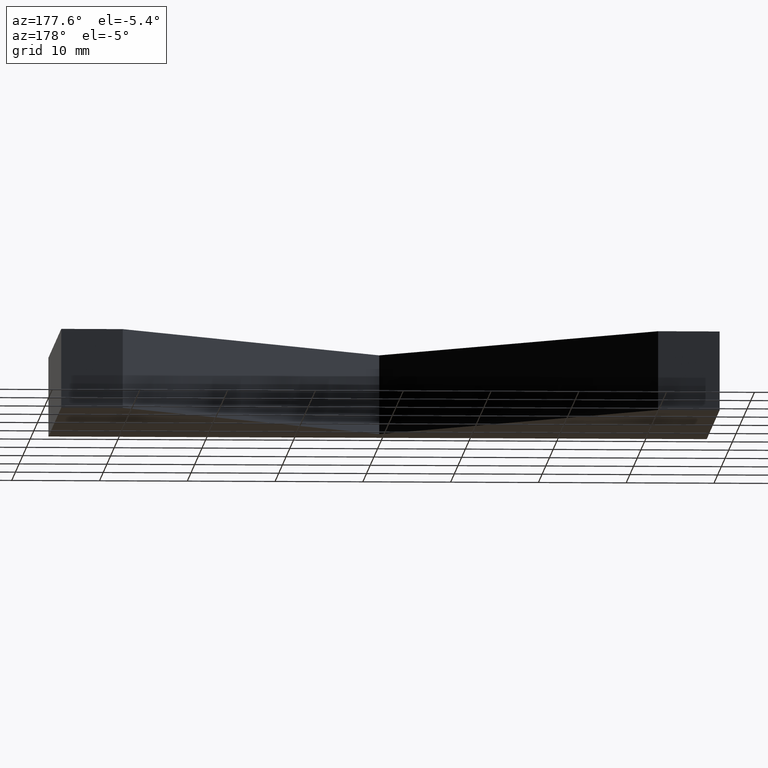
[diagram: clean part render]
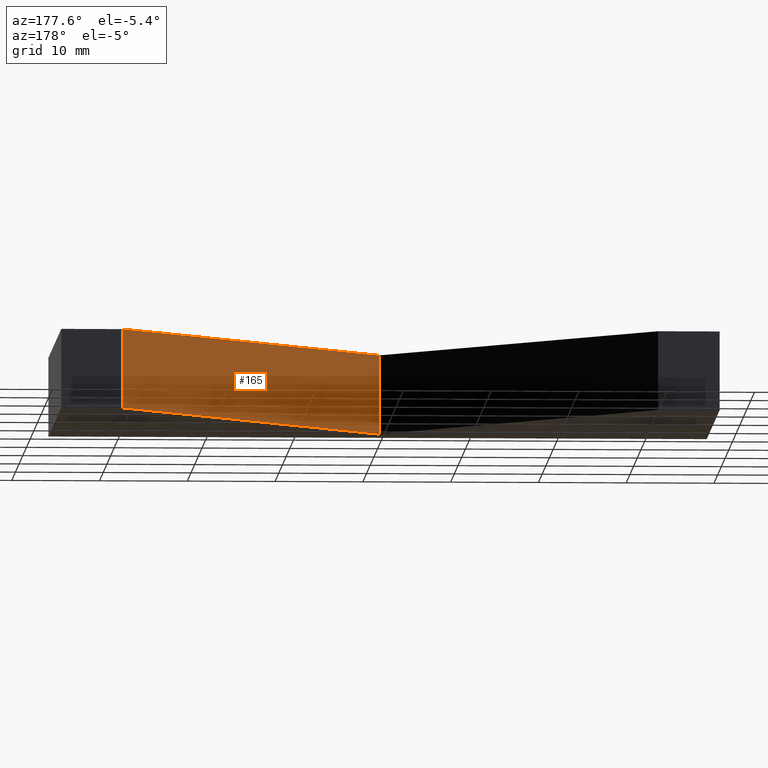
[diagram: same view with one face highlighted and labeled with its STEP entity id]
A machine part, auxiliary view. The second image highlights one B-rep face of the part: STEP entity #165.
In plain terms, the highlighted planar face has unit normal (-0.7071, 0.7071, 0).
Its self-contained STEP definition (entity closure, byte-faithful):
#19=FACE_OUTER_BOUND('',#28,.T.);
#28=EDGE_LOOP('',(#129,#130,#131,#132));
#38=LINE('',#257,#59);
#46=LINE('',#272,#67);
#47=LINE('',#275,#68);
#48=LINE('',#276,#69);
#59=VECTOR('',#211,10.);
#67=VECTOR('',#225,10.);
#68=VECTOR('',#228,10.);
#69=VECTOR('',#229,10.);
#80=VERTEX_POINT('',#254);
#81=VERTEX_POINT('',#256);
#85=VERTEX_POINT('',#270);
#86=VERTEX_POINT('',#274);
#94=EDGE_CURVE('',#81,#80,#38,.T.);
#102=EDGE_CURVE('',#85,#80,#46,.T.);
#103=EDGE_CURVE('',#85,#86,#47,.T.);
#104=EDGE_CURVE('',#86,#81,#48,.T.);
#129=ORIENTED_EDGE('',*,*,#103,.T.);
#130=ORIENTED_EDGE('',*,*,#104,.T.);
#131=ORIENTED_EDGE('',*,*,#94,.T.);
#132=ORIENTED_EDGE('',*,*,#102,.F.);
#156=PLANE('',#197);
#165=ADVANCED_FACE('',(#19),#156,.T.);
#197=AXIS2_PLACEMENT_3D('',#273,#226,#227);
#211=DIRECTION('',(-0.707106781186547,-0.707106781186548,0.));
#225=DIRECTION('',(0.,0.,-1.));
#226=DIRECTION('center_axis',(-0.707106781186548,0.707106781186547,0.));
#227=DIRECTION('ref_axis',(0.,0.,1.));
#228=DIRECTION('',(0.707106781186547,0.707106781186548,0.));
#229=DIRECTION('',(0.,0.,-1.));
#254=CARTESIAN_POINT('',(0.,4.5,-4.5));
#256=CARTESIAN_POINT('',(30.5,35.,-4.5));
#257=CARTESIAN_POINT('',(0.,4.5,-4.5));
#270=CARTESIAN_POINT('',(0.,4.5,4.5));
#272=CARTESIAN_POINT('',(0.,4.5,0.));
#273=CARTESIAN_POINT('Origin',(0.,4.5,0.));
#274=CARTESIAN_POINT('',(30.5,35.,4.5));
#275=CARTESIAN_POINT('',(0.,4.5,4.5));
#276=CARTESIAN_POINT('',(30.5,35.,0.));